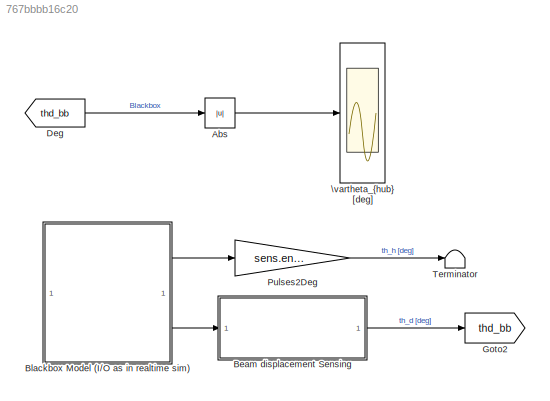
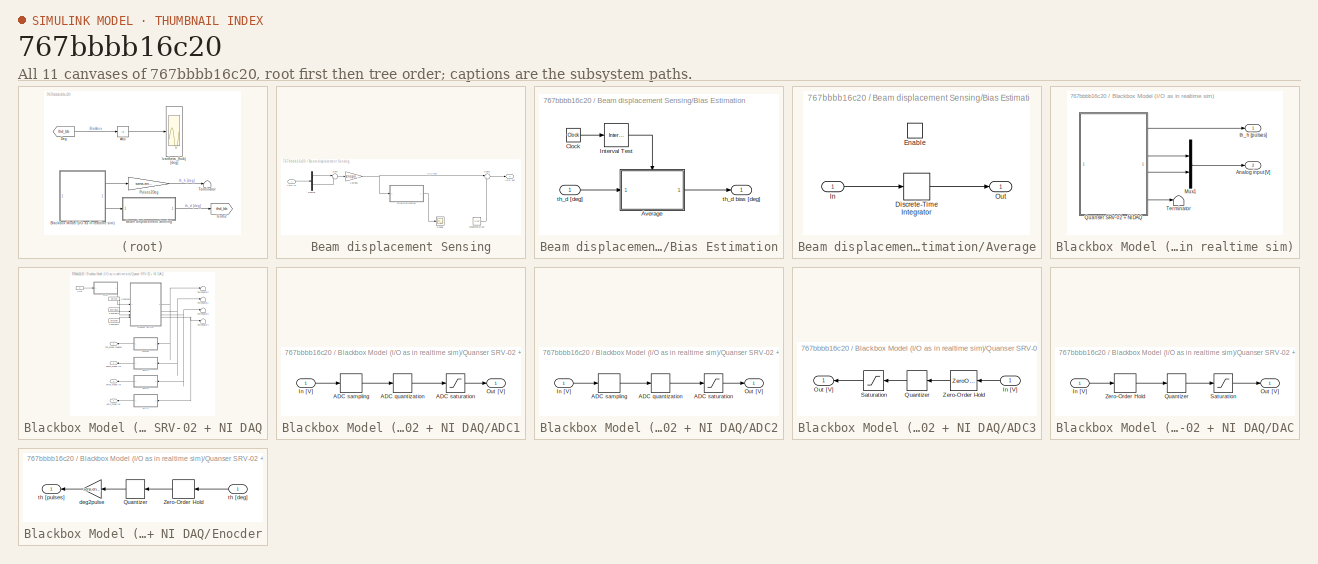
[diagram: thumbnail index - all 11 canvases of the model, root first then tree order]
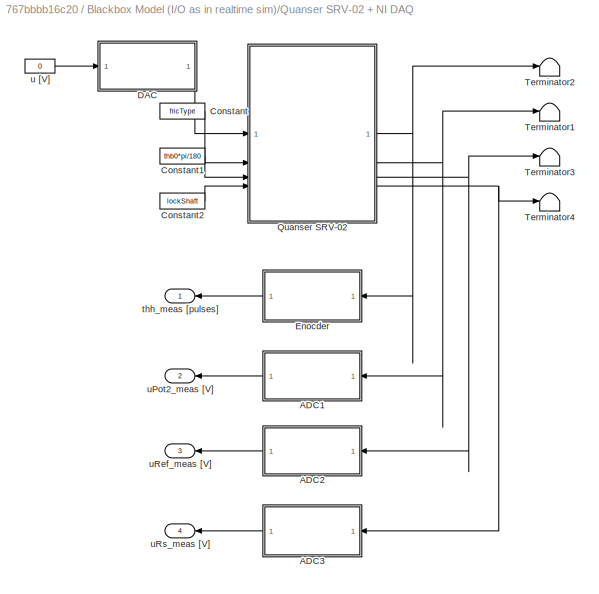
MODEL slx_767bbbb16c20
KIND model
CONFIG AbsTol = auto
CONFIG EnableMultiTasking = off
CONFIG FixedStep = auto
CONFIG MaxStep = auto
CONFIG MinStep = auto
CONFIG RelTol = 1e-3
CONFIG SampleTimeConstraint = Unconstrained
CONFIG SolverName = ode45
CONFIG StartTime = 0.0
CONFIG StopTime = sIn.simulation_time
BLOCK [Abs] Abs
  SaturateOnIntegerOverflow = off
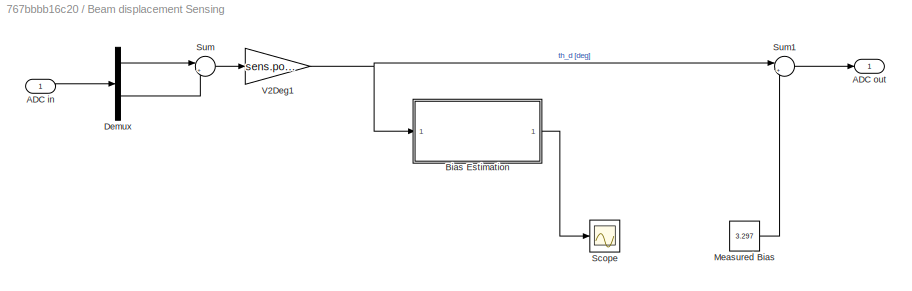
BLOCK [SubSystem] Beam displacement Sensing
BLOCK [Inport] Beam displacement Sensing/ADC in
BLOCK [Outport] Beam displacement Sensing/ADC out
BLOCK [SubSystem] Beam displacement Sensing/Bias Estimation
BLOCK [SubSystem] Beam displacement Sensing/Bias Estimation/Average
BLOCK [DiscreteIntegrator] Beam displacement Sensing/Bias Estimation/Average/Discrete-Time Integrator
  ICPrevOutput = DiscIntNeverNeededParam
  ICPrevScaledInput = DiscIntNeverNeededParam
  InitialConditionSetting = Auto
  SampleTime = -1
  gainval = 1/(sIn.t1-sIn.t0)
BLOCK [EnablePort] Beam displacement Sensing/Bias Estimation/Average/Enable
BLOCK [Inport] Beam displacement Sensing/Bias Estimation/Average/In
BLOCK [Outport] Beam displacement Sensing/Bias Estimation/Average/Out
BLOCK [Clock] Beam displacement Sensing/Bias Estimation/Clock
BLOCK [Reference] Beam displacement Sensing/Bias Estimation/Interval Test  REF=simulink/Logic and Bit
Operations/Interval Test
  SourceBlock = simulink/Logic and Bit\nOperations/Interval Test
  SourceType = Interval Test
BLOCK [Inport] Beam displacement Sensing/Bias Estimation/th_d [deg]
BLOCK [Outport] Beam displacement Sensing/Bias Estimation/th_d bias [deg]
BLOCK [Demux] Beam displacement Sensing/Demux
  Outputs = 2
BLOCK [Constant] Beam displacement Sensing/Measured Bias
  Value = 3.297
BLOCK [Scope] Beam displacement Sensing/Scope
  Floating = off
  NumInputPorts = 1
  ScopeSpecificationString = Simulink.scopes.TimeScopeBlockCfg('CurrentConfiguration', extmgr.ConfigurationSet(extmgr.Configuration('Core','General UI',true),extmgr.Configuration('Core','Source UI',true),extmgr.Configuration('Sources','WiredSimulink',true,'DataLoggingVariableName','ScopeData1'),extmgr.Configuration('Visuals','Time Domain',true,'SerializedDisplays',{struct('MinYLimReal','-0.47188','MaxYLimReal','4.24693','YLab...<+1791ch>
BLOCK [Sum] Beam displacement Sensing/Sum
  Inputs = |+-
BLOCK [Sum] Beam displacement Sensing/Sum1
  Inputs = |+-
BLOCK [Gain] Beam displacement Sensing/V2Deg1
  Gain = sens.pot2.V2deg
BLOCK [SubSystem] Blackbox Model (I//O as in realtime sim)
BLOCK [Outport] Blackbox Model (I//O as in realtime sim)/Analog input [V]
  Port = 2
BLOCK [Mux] Blackbox Model (I//O as in realtime sim)/Mux1
  DisplayOption = bar
  Inputs = 2
BLOCK [SubSystem] Blackbox Model (I//O as in realtime sim)/Quanser SRV-02 + NI DAQ
BLOCK [SubSystem] Blackbox Model (I//O as in realtime sim)/Quanser SRV-02 + NI DAQ/ADC1
BLOCK [Quantizer] Blackbox Model (I//O as in realtime sim)/Quanser SRV-02 + NI DAQ/ADC1/ADC quantization
  QuantizationInterval = daq.adc.q
BLOCK [ZeroOrderHold] Blackbox Model (I//O as in realtime sim)/Quanser SRV-02 + NI DAQ/ADC1/ADC sampling
  SampleTime = Ts
BLOCK [Saturate] Blackbox Model (I//O as in realtime sim)/Quanser SRV-02 + NI DAQ/ADC1/ADC saturation
  LowerLimit = -daq.adc.fs
  UpperLimit = daq.adc.fs
BLOCK [Inport] Blackbox Model (I//O as in realtime sim)/Quanser SRV-02 + NI DAQ/ADC1/In [V]
BLOCK [Outport] Blackbox Model (I//O as in realtime sim)/Quanser SRV-02 + NI DAQ/ADC1/Out [V]
BLOCK [SubSystem] Blackbox Model (I//O as in realtime sim)/Quanser SRV-02 + NI DAQ/ADC2
BLOCK [Quantizer] Blackbox Model (I//O as in realtime sim)/Quanser SRV-02 + NI DAQ/ADC2/ADC quantization
  QuantizationInterval = daq.adc.q
BLOCK [ZeroOrderHold] Blackbox Model (I//O as in realtime sim)/Quanser SRV-02 + NI DAQ/ADC2/ADC sampling
  SampleTime = Ts
BLOCK [Saturate] Blackbox Model (I//O as in realtime sim)/Quanser SRV-02 + NI DAQ/ADC2/ADC saturation
  LowerLimit = -daq.adc.fs
  UpperLimit = daq.adc.fs
BLOCK [Inport] Blackbox Model (I//O as in realtime sim)/Quanser SRV-02 + NI DAQ/ADC2/In [V]
BLOCK [Outport] Blackbox Model (I//O as in realtime sim)/Quanser SRV-02 + NI DAQ/ADC2/Out [V]
BLOCK [SubSystem] Blackbox Model (I//O as in realtime sim)/Quanser SRV-02 + NI DAQ/ADC3
BLOCK [Inport] Blackbox Model (I//O as in realtime sim)/Quanser SRV-02 + NI DAQ/ADC3/In [V]
BLOCK [Outport] Blackbox Model (I//O as in realtime sim)/Quanser SRV-02 + NI DAQ/ADC3/Out [V]
BLOCK [Quantizer] Blackbox Model (I//O as in realtime sim)/Quanser SRV-02 + NI DAQ/ADC3/Quantizer
  QuantizationInterval = daq.adc.q
BLOCK [Saturate] Blackbox Model (I//O as in realtime sim)/Quanser SRV-02 + NI DAQ/ADC3/Saturation
  LowerLimit = -daq.adc.fs
  UpperLimit = daq.adc.fs
BLOCK [ZeroOrderHold] Blackbox Model (I//O as in realtime sim)/Quanser SRV-02 + NI DAQ/ADC3/Zero-Order Hold
  SampleTime = Ts
BLOCK [Constant] Blackbox Model (I//O as in realtime sim)/Quanser SRV-02 + NI DAQ/Constant
  Value = fricType
BLOCK [Constant] Blackbox Model (I//O as in realtime sim)/Quanser SRV-02 + NI DAQ/Constant1
  SampleTime = Inf
  Value = thb0*pi/180
BLOCK [Constant] Blackbox Model (I//O as in realtime sim)/Quanser SRV-02 + NI DAQ/Constant2
  SampleTime = Inf
  Value = lockShaft
BLOCK [SubSystem] Blackbox Model (I//O as in realtime sim)/Quanser SRV-02 + NI DAQ/DAC
BLOCK [Inport] Blackbox Model (I//O as in realtime sim)/Quanser SRV-02 + NI DAQ/DAC/In [V]
BLOCK [Outport] Blackbox Model (I//O as in realtime sim)/Quanser SRV-02 + NI DAQ/DAC/Out [V]
BLOCK [Quantizer] Blackbox Model (I//O as in realtime sim)/Quanser SRV-02 + NI DAQ/DAC/Quantizer
  QuantizationInterval = daq.dac.q
BLOCK [Saturate] Blackbox Model (I//O as in realtime sim)/Quanser SRV-02 + NI DAQ/DAC/Saturation
  LowerLimit = -daq.dac.fs
  UpperLimit = daq.dac.fs
BLOCK [ZeroOrderHold] Blackbox Model (I//O as in realtime sim)/Quanser SRV-02 + NI DAQ/DAC/Zero-Order Hold
  SampleTime = Ts
BLOCK [SubSystem] Blackbox Model (I//O as in realtime sim)/Quanser SRV-02 + NI DAQ/Enocder
BLOCK [Quantizer] Blackbox Model (I//O as in realtime sim)/Quanser SRV-02 + NI DAQ/Enocder/Quantizer
  QuantizationInterval = sens.enc.pulse2deg
BLOCK [ZeroOrderHold] Blackbox Model (I//O as in realtime sim)/Quanser SRV-02 + NI DAQ/Enocder/Zero-Order Hold
  SampleTime = Ts
BLOCK [Gain] Blackbox Model (I//O as in realtime sim)/Quanser SRV-02 + NI DAQ/Enocder/deg2pulse
  Gain = sens.enc.deg2pulse
BLOCK [Inport] Blackbox Model (I//O as in realtime sim)/Quanser SRV-02 + NI DAQ/Enocder/th [deg]
BLOCK [Outport] Blackbox Model (I//O as in realtime sim)/Quanser SRV-02 + NI DAQ/Enocder/th [pulses]
BLOCK [ModelReference] Blackbox Model (I//O as in realtime sim)/Quanser SRV-02 + NI DAQ/Quanser SRV-02
  CopyOfModelProtected = on
  ModelNameDialog = SRV02RL_win64.slxp
  ModelReferenceVersion = 1.76
BLOCK [Terminator] Blackbox Model (I//O as in realtime sim)/Quanser SRV-02 + NI DAQ/Terminator1
BLOCK [Terminator] Blackbox Model (I//O as in realtime sim)/Quanser SRV-02 + NI DAQ/Terminator2
BLOCK [Terminator] Blackbox Model (I//O as in realtime sim)/Quanser SRV-02 + NI DAQ/Terminator3
BLOCK [Terminator] Blackbox Model (I//O as in realtime sim)/Quanser SRV-02 + NI DAQ/Terminator4
BLOCK [Outport] Blackbox Model (I//O as in realtime sim)/Quanser SRV-02 + NI DAQ/thh_meas [pulses]
BLOCK [Constant] Blackbox Model (I//O as in realtime sim)/Quanser SRV-02 + NI DAQ/u [V]
  Value = 0
BLOCK [Outport] Blackbox Model (I//O as in realtime sim)/Quanser SRV-02 + NI DAQ/uPot2_meas [V]
  Port = 2
BLOCK [Outport] Blackbox Model (I//O as in realtime sim)/Quanser SRV-02 + NI DAQ/uRef_meas [V]
  Port = 3
BLOCK [Outport] Blackbox Model (I//O as in realtime sim)/Quanser SRV-02 + NI DAQ/uRs_meas [V]
  Port = 4
BLOCK [Terminator] Blackbox Model (I//O as in realtime sim)/Terminator
BLOCK [Outport] Blackbox Model (I//O as in realtime sim)/th_h [pulses]
BLOCK [From] Deg
  GotoTag = thd_bb
BLOCK [Goto] Goto2
  GotoTag = thd_bb
BLOCK [Gain] Pulses2Deg
  Gain = sens.enc.pulse2deg
BLOCK [Terminator] Terminator
BLOCK [Scope] \vartheta_{hub} [deg]
  Floating = off
  NumInputPorts = 1
  ScopeSpecificationString = Simulink.scopes.TimeScopeBlockCfg('CurrentConfiguration', extmgr.ConfigurationSet(extmgr.Configuration('Core','General UI',true),extmgr.Configuration('Core','Source UI',true),extmgr.Configuration('Sources','WiredSimulink',true,'DataLogging',true,'DataLoggingSaveFormat','StructureWithTime','DataLoggingVariableName','sim_resp'),extmgr.Configuration('Visuals','Time Domain',true,'SerializedDisplays',{...<+2008ch>
LINE Abs:1 -> \vartheta_{hub} [deg]:1
LINE Beam displacement Sensing/ADC in:1 -> Beam displacement Sensing/Demux:1
LINE Beam displacement Sensing/Bias Estimation/Average/Discrete-Time Integrator:1 -> Beam displacement Sensing/Bias Estimation/Average/Out:1
LINE Beam displacement Sensing/Bias Estimation/Average/In:1 -> Beam displacement Sensing/Bias Estimation/Average/Discrete-Time Integrator:1
LINE Beam displacement Sensing/Bias Estimation/Average:1 -> Beam displacement Sensing/Bias Estimation/th_d bias [deg]:1
LINE Beam displacement Sensing/Bias Estimation/Clock:1 -> Beam displacement Sensing/Bias Estimation/Interval Test:1
LINE Beam displacement Sensing/Bias Estimation/Interval Test:1 -> Beam displacement Sensing/Bias Estimation/Average:enable
LINE Beam displacement Sensing/Bias Estimation/th_d [deg]:1 -> Beam displacement Sensing/Bias Estimation/Average:1
LINE Beam displacement Sensing/Bias Estimation:1 -> Beam displacement Sensing/Scope:1
LINE Beam displacement Sensing/Demux:1 -> Beam displacement Sensing/Sum:1
LINE Beam displacement Sensing/Demux:2 -> Beam displacement Sensing/Sum:2
LINE Beam displacement Sensing/Measured Bias:1 -> Beam displacement Sensing/Sum1:2
LINE Beam displacement Sensing/Sum1:1 -> Beam displacement Sensing/ADC out:1
LINE Beam displacement Sensing/Sum:1 -> Beam displacement Sensing/V2Deg1:1
NET Beam displacement Sensing/V2Deg1:1 -> Beam displacement Sensing/Bias Estimation:1, Beam displacement Sensing/Sum1:1
LINE Beam displacement Sensing:1 -> Goto2:1
LINE Blackbox Model (I//O as in realtime sim)/Mux1:1 -> Blackbox Model (I//O as in realtime sim)/Analog input [V]:1
LINE Blackbox Model (I//O as in realtime sim)/Quanser SRV-02 + NI DAQ/ADC1/ADC quantization:1 -> Blackbox Model (I//O as in realtime sim)/Quanser SRV-02 + NI DAQ/ADC1/ADC saturation:1
LINE Blackbox Model (I//O as in realtime sim)/Quanser SRV-02 + NI DAQ/ADC1/ADC sampling:1 -> Blackbox Model (I//O as in realtime sim)/Quanser SRV-02 + NI DAQ/ADC1/ADC quantization:1
LINE Blackbox Model (I//O as in realtime sim)/Quanser SRV-02 + NI DAQ/ADC1/ADC saturation:1 -> Blackbox Model (I//O as in realtime sim)/Quanser SRV-02 + NI DAQ/ADC1/Out [V]:1
LINE Blackbox Model (I//O as in realtime sim)/Quanser SRV-02 + NI DAQ/ADC1/In [V]:1 -> Blackbox Model (I//O as in realtime sim)/Quanser SRV-02 + NI DAQ/ADC1/ADC sampling:1
LINE Blackbox Model (I//O as in realtime sim)/Quanser SRV-02 + NI DAQ/ADC1:1 -> Blackbox Model (I//O as in realtime sim)/Quanser SRV-02 + NI DAQ/uPot2_meas [V]:1
LINE Blackbox Model (I//O as in realtime sim)/Quanser SRV-02 + NI DAQ/ADC2/ADC quantization:1 -> Blackbox Model (I//O as in realtime sim)/Quanser SRV-02 + NI DAQ/ADC2/ADC saturation:1
LINE Blackbox Model (I//O as in realtime sim)/Quanser SRV-02 + NI DAQ/ADC2/ADC sampling:1 -> Blackbox Model (I//O as in realtime sim)/Quanser SRV-02 + NI DAQ/ADC2/ADC quantization:1
LINE Blackbox Model (I//O as in realtime sim)/Quanser SRV-02 + NI DAQ/ADC2/ADC saturation:1 -> Blackbox Model (I//O as in realtime sim)/Quanser SRV-02 + NI DAQ/ADC2/Out [V]:1
LINE Blackbox Model (I//O as in realtime sim)/Quanser SRV-02 + NI DAQ/ADC2/In [V]:1 -> Blackbox Model (I//O as in realtime sim)/Quanser SRV-02 + NI DAQ/ADC2/ADC sampling:1
LINE Blackbox Model (I//O as in realtime sim)/Quanser SRV-02 + NI DAQ/ADC2:1 -> Blackbox Model (I//O as in realtime sim)/Quanser SRV-02 + NI DAQ/uRef_meas [V]:1
LINE Blackbox Model (I//O as in realtime sim)/Quanser SRV-02 + NI DAQ/ADC3/In [V]:1 -> Blackbox Model (I//O as in realtime sim)/Quanser SRV-02 + NI DAQ/ADC3/Zero-Order Hold:1
LINE Blackbox Model (I//O as in realtime sim)/Quanser SRV-02 + NI DAQ/ADC3/Quantizer:1 -> Blackbox Model (I//O as in realtime sim)/Quanser SRV-02 + NI DAQ/ADC3/Saturation:1
LINE Blackbox Model (I//O as in realtime sim)/Quanser SRV-02 + NI DAQ/ADC3/Saturation:1 -> Blackbox Model (I//O as in realtime sim)/Quanser SRV-02 + NI DAQ/ADC3/Out [V]:1
LINE Blackbox Model (I//O as in realtime sim)/Quanser SRV-02 + NI DAQ/ADC3/Zero-Order Hold:1 -> Blackbox Model (I//O as in realtime sim)/Quanser SRV-02 + NI DAQ/ADC3/Quantizer:1
LINE Blackbox Model (I//O as in realtime sim)/Quanser SRV-02 + NI DAQ/ADC3:1 -> Blackbox Model (I//O as in realtime sim)/Quanser SRV-02 + NI DAQ/uRs_meas [V]:1
LINE Blackbox Model (I//O as in realtime sim)/Quanser SRV-02 + NI DAQ/Constant1:1 -> Blackbox Model (I//O as in realtime sim)/Quanser SRV-02 + NI DAQ/Quanser SRV-02:3
LINE Blackbox Model (I//O as in realtime sim)/Quanser SRV-02 + NI DAQ/Constant2:1 -> Blackbox Model (I//O as in realtime sim)/Quanser SRV-02 + NI DAQ/Quanser SRV-02:4
LINE Blackbox Model (I//O as in realtime sim)/Quanser SRV-02 + NI DAQ/Constant:1 -> Blackbox Model (I//O as in realtime sim)/Quanser SRV-02 + NI DAQ/Quanser SRV-02:2
LINE Blackbox Model (I//O as in realtime sim)/Quanser SRV-02 + NI DAQ/DAC/In [V]:1 -> Blackbox Model (I//O as in realtime sim)/Quanser SRV-02 + NI DAQ/DAC/Zero-Order Hold:1
LINE Blackbox Model (I//O as in realtime sim)/Quanser SRV-02 + NI DAQ/DAC/Quantizer:1 -> Blackbox Model (I//O as in realtime sim)/Quanser SRV-02 + NI DAQ/DAC/Saturation:1
LINE Blackbox Model (I//O as in realtime sim)/Quanser SRV-02 + NI DAQ/DAC/Saturation:1 -> Blackbox Model (I//O as in realtime sim)/Quanser SRV-02 + NI DAQ/DAC/Out [V]:1
LINE Blackbox Model (I//O as in realtime sim)/Quanser SRV-02 + NI DAQ/DAC/Zero-Order Hold:1 -> Blackbox Model (I//O as in realtime sim)/Quanser SRV-02 + NI DAQ/DAC/Quantizer:1
LINE Blackbox Model (I//O as in realtime sim)/Quanser SRV-02 + NI DAQ/DAC:1 -> Blackbox Model (I//O as in realtime sim)/Quanser SRV-02 + NI DAQ/Quanser SRV-02:1
LINE Blackbox Model (I//O as in realtime sim)/Quanser SRV-02 + NI DAQ/Enocder/Quantizer:1 -> Blackbox Model (I//O as in realtime sim)/Quanser SRV-02 + NI DAQ/Enocder/deg2pulse:1
LINE Blackbox Model (I//O as in realtime sim)/Quanser SRV-02 + NI DAQ/Enocder/Zero-Order Hold:1 -> Blackbox Model (I//O as in realtime sim)/Quanser SRV-02 + NI DAQ/Enocder/Quantizer:1
LINE Blackbox Model (I//O as in realtime sim)/Quanser SRV-02 + NI DAQ/Enocder/deg2pulse:1 -> Blackbox Model (I//O as in realtime sim)/Quanser SRV-02 + NI DAQ/Enocder/th [pulses]:1
LINE Blackbox Model (I//O as in realtime sim)/Quanser SRV-02 + NI DAQ/Enocder/th [deg]:1 -> Blackbox Model (I//O as in realtime sim)/Quanser SRV-02 + NI DAQ/Enocder/Zero-Order Hold:1
LINE Blackbox Model (I//O as in realtime sim)/Quanser SRV-02 + NI DAQ/Enocder:1 -> Blackbox Model (I//O as in realtime sim)/Quanser SRV-02 + NI DAQ/thh_meas [pulses]:1
NET Blackbox Model (I//O as in realtime sim)/Quanser SRV-02 + NI DAQ/Quanser SRV-02:1 -> Blackbox Model (I//O as in realtime sim)/Quanser SRV-02 + NI DAQ/Enocder:1, Blackbox Model (I//O as in realtime sim)/Quanser SRV-02 + NI DAQ/Terminator2:1
NET Blackbox Model (I//O as in realtime sim)/Quanser SRV-02 + NI DAQ/Quanser SRV-02:2 -> Blackbox Model (I//O as in realtime sim)/Quanser SRV-02 + NI DAQ/ADC1:1, Blackbox Model (I//O as in realtime sim)/Quanser SRV-02 + NI DAQ/Terminator1:1
NET Blackbox Model (I//O as in realtime sim)/Quanser SRV-02 + NI DAQ/Quanser SRV-02:3 -> Blackbox Model (I//O as in realtime sim)/Quanser SRV-02 + NI DAQ/ADC2:1, Blackbox Model (I//O as in realtime sim)/Quanser SRV-02 + NI DAQ/Terminator3:1
NET Blackbox Model (I//O as in realtime sim)/Quanser SRV-02 + NI DAQ/Quanser SRV-02:4 -> Blackbox Model (I//O as in realtime sim)/Quanser SRV-02 + NI DAQ/ADC3:1, Blackbox Model (I//O as in realtime sim)/Quanser SRV-02 + NI DAQ/Terminator4:1
LINE Blackbox Model (I//O as in realtime sim)/Quanser SRV-02 + NI DAQ/u [V]:1 -> Blackbox Model (I//O as in realtime sim)/Quanser SRV-02 + NI DAQ/DAC:1
LINE Blackbox Model (I//O as in realtime sim)/Quanser SRV-02 + NI DAQ:1 -> Blackbox Model (I//O as in realtime sim)/th_h [pulses]:1
LINE Blackbox Model (I//O as in realtime sim)/Quanser SRV-02 + NI DAQ:2 -> Blackbox Model (I//O as in realtime sim)/Mux1:1
LINE Blackbox Model (I//O as in realtime sim)/Quanser SRV-02 + NI DAQ:3 -> Blackbox Model (I//O as in realtime sim)/Mux1:2
LINE Blackbox Model (I//O as in realtime sim)/Quanser SRV-02 + NI DAQ:4 -> Blackbox Model (I//O as in realtime sim)/Terminator:1
LINE Blackbox Model (I//O as in realtime sim):1 -> Pulses2Deg:1
LINE Blackbox Model (I//O as in realtime sim):2 -> Beam displacement Sensing:1
LINE Deg:1 -> Abs:1
LINE Pulses2Deg:1 -> Terminator:1
note: NET lines group one-source signal fan-out (src -> all destinations, sorted); 1:1 wires keep LINE
